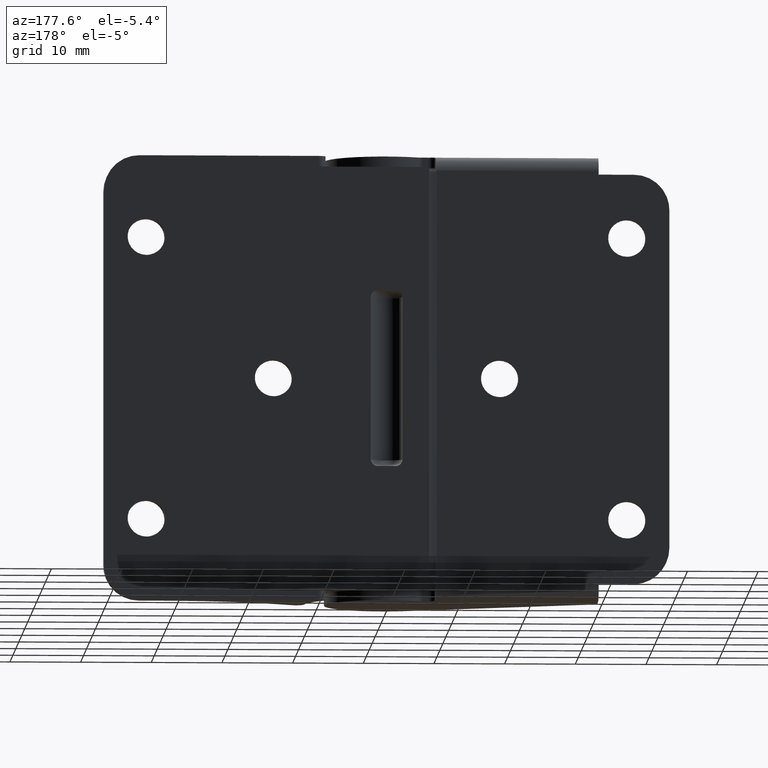
[diagram: clean part render]
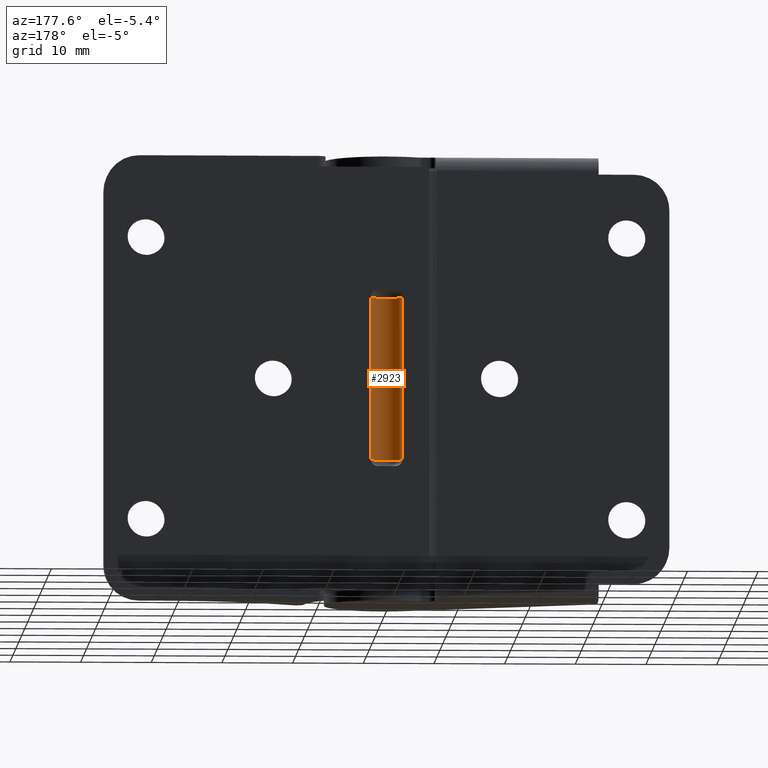
[diagram: same view with one face highlighted and labeled with its STEP entity id]
A machine part, auxiliary view. The second image highlights one B-rep face of the part: STEP entity #2923.
In plain terms, the highlighted face is a freeform B-spline surface patch.
Its self-contained STEP definition (entity closure, byte-faithful):
#2708=CARTESIAN_POINT('',(-2.249999999999800,9.0,43.0));
#2709=VERTEX_POINT('',#2708);
#2740=CARTESIAN_POINT('',(2.249999999999800,9.0,43.0));
#2741=VERTEX_POINT('',#2740);
#2755=CARTESIAN_POINT('',(-2.249999999999800,9.0,43.0));
#2756=CARTESIAN_POINT('',(-2.249999999999800,6.750000000000201,43.0));
#2757=CARTESIAN_POINT('',(0.0,6.750000000000200,43.0));
#2758=CARTESIAN_POINT('',(2.249999999999800,6.750000000000201,43.0));
#2759=CARTESIAN_POINT('',(2.249999999999800,9.0,43.0));
#2767=(BOUNDED_CURVE()B_SPLINE_CURVE(2,(#2755,#2756,#2757,#2758,#2759),.UNSPECIFIED.,.F.,.U.)B_SPLINE_CURVE_WITH_KNOTS((3,2,3),(0.0,0.500000000000000,1.0),.UNSPECIFIED.)CURVE()GEOMETRIC_REPRESENTATION_ITEM()RATIONAL_B_SPLINE_CURVE((1.0,0.707106781186547,1.0,0.707106781186547,1.0))REPRESENTATION_ITEM(''));
#2768=EDGE_CURVE('',#2709,#2741,#2767,.T.);
#2796=CARTESIAN_POINT('',(-2.249999999999800,9.0,20.0));
#2797=VERTEX_POINT('',#2796);
#2813=CARTESIAN_POINT('',(2.249999999999800,9.0,20.0));
#2814=VERTEX_POINT('',#2813);
#2815=CARTESIAN_POINT('',(2.249999999999800,9.0,20.0));
#2816=CARTESIAN_POINT('',(2.249999999999800,6.750000000000201,20.0));
#2817=CARTESIAN_POINT('',(0.0,6.750000000000200,20.0));
#2818=CARTESIAN_POINT('',(-2.249999999999800,6.750000000000201,20.0));
#2819=CARTESIAN_POINT('',(-2.249999999999800,9.0,20.0));
#2827=(BOUNDED_CURVE()B_SPLINE_CURVE(2,(#2815,#2816,#2817,#2818,#2819),.UNSPECIFIED.,.F.,.U.)B_SPLINE_CURVE_WITH_KNOTS((3,2,3),(0.0,0.500000000000000,1.0),.UNSPECIFIED.)CURVE()GEOMETRIC_REPRESENTATION_ITEM()RATIONAL_B_SPLINE_CURVE((1.0,0.707106781186547,1.0,0.707106781186547,1.0))REPRESENTATION_ITEM(''));
#2828=EDGE_CURVE('',#2814,#2797,#2827,.T.);
#2891=CARTESIAN_POINT('',(-2.249228981194803,9.058898133692713,43.575000000000010));
#2892=CARTESIAN_POINT('',(-2.249228981194803,9.058898133692713,19.410625000000000));
#2893=CARTESIAN_POINT('',(-2.311294663896325,6.688705336103683,43.575000000000010));
#2894=CARTESIAN_POINT('',(-2.311294663896325,6.688705336103683,19.410624999999992));
#2895=CARTESIAN_POINT('',(0.058898133692706,6.750771018805196,43.575000000000010));
#2896=CARTESIAN_POINT('',(0.058898133692706,6.750771018805196,19.410625000000000));
#2897=CARTESIAN_POINT('',(2.429090931281737,6.812836701506710,43.575000000000010));
#2898=CARTESIAN_POINT('',(2.429090931281737,6.812836701506710,19.410624999999992));
#2899=CARTESIAN_POINT('',(2.243064000899341,9.176532965387631,43.575000000000010));
#2900=CARTESIAN_POINT('',(2.243064000899341,9.176532965387631,19.410625000000000));
#2908=(BOUNDED_SURFACE()B_SPLINE_SURFACE(1,2,((#2891,#2893,#2895,#2897,#2899),(#2892,#2894,#2896,#2898,#2900)),.UNSPECIFIED.,.F.,.F.,.U.)B_SPLINE_SURFACE_WITH_KNOTS((2,2),(3,2,3),(0.0,24.164375000000021),(0.0,3.866705153701180,7.733410307402361),.UNSPECIFIED.)GEOMETRIC_REPRESENTATION_ITEM()RATIONAL_B_SPLINE_SURFACE(((1.0,0.688354575693754,1.0,0.688354575693754,1.0),(1.0,0.688354575693754,1.0,0.688354575693754,1.0)))REPRESENTATION_ITEM('')SURFACE());
#2909=CARTESIAN_POINT('',(2.249999999999800,9.0,43.0));
#2910=CARTESIAN_POINT('',(2.249999999999800,9.0,20.0));
#2911=QUASI_UNIFORM_CURVE('',1,(#2909,#2910),.UNSPECIFIED.,.F.,.U.);
#2912=EDGE_CURVE('',#2741,#2814,#2911,.T.);
#2913=ORIENTED_EDGE('',*,*,#2912,.T.);
#2914=ORIENTED_EDGE('',*,*,#2828,.T.);
#2915=CARTESIAN_POINT('',(-2.249999999999800,9.0,20.0));
#2916=CARTESIAN_POINT('',(-2.249999999999800,9.0,43.0));
#2917=QUASI_UNIFORM_CURVE('',1,(#2915,#2916),.UNSPECIFIED.,.F.,.U.);
#2918=EDGE_CURVE('',#2797,#2709,#2917,.T.);
#2919=ORIENTED_EDGE('',*,*,#2918,.T.);
#2920=ORIENTED_EDGE('',*,*,#2768,.T.);
#2921=EDGE_LOOP('',(#2913,#2914,#2919,#2920));
#2922=FACE_OUTER_BOUND('',#2921,.T.);
#2923=ADVANCED_FACE('',(#2922),#2908,.F.);